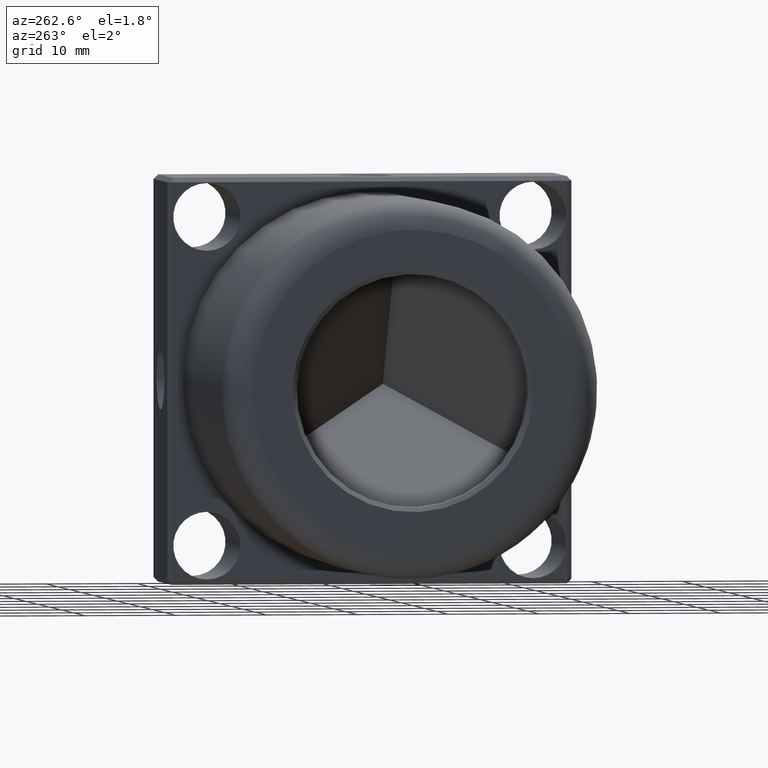
[diagram: clean part render]
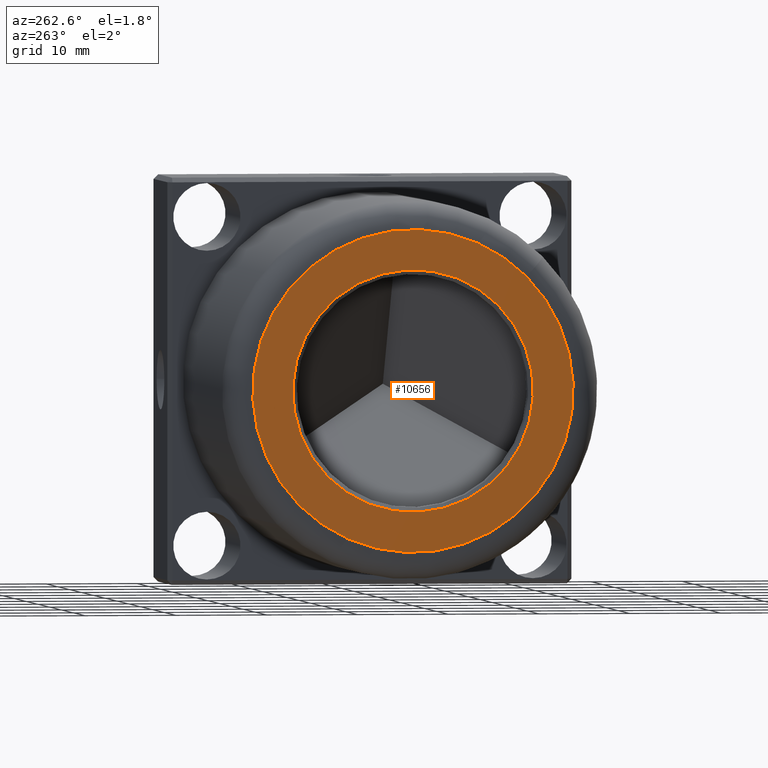
[diagram: same view with one face highlighted and labeled with its STEP entity id]
A machine part, auxiliary view. The second image highlights one B-rep face of the part: STEP entity #10656.
In plain terms, the highlighted planar face has unit normal (-1, 0, -0).
Its self-contained STEP definition (entity closure, byte-faithful):
#188 = EDGE_LOOP ( 'NONE', ( #10357, #11424 ) ) ;
#235 = DIRECTION ( 'NONE',  ( 1.000000000000000000, -6.489919646852779600E-017, 4.417091939023369800E-017 ) ) ;
#569 = EDGE_CURVE ( 'NONE', #2812, #10999, #9987, .T. ) ;
#1193 = CARTESIAN_POINT ( 'NONE',  ( -1.021895895768059300E-015, -9.369164850721841000, 9.369164850721666900 ) ) ;
#1259 = DIRECTION ( 'NONE',  ( -1.000000000000000000, 6.489919646852779600E-017, -4.417091939023369800E-017 ) ) ;
#1322 = EDGE_LOOP ( 'NONE', ( #4140, #1567 ) ) ;
#1468 = AXIS2_PLACEMENT_3D ( 'NONE', #5832, #235, #6802 ) ;
#1567 = ORIENTED_EDGE ( 'NONE', *, *, #3960, .T. ) ;
#2558 = CIRCLE ( 'NONE', #6806, 17.64999999999999900 ) ;
#2747 = CIRCLE ( 'NONE', #1468, 13.24999999999999800 ) ;
#2812 = VERTEX_POINT ( 'NONE', #1193 ) ;
#3012 = AXIS2_PLACEMENT_3D ( 'NONE', #6884, #1259, #7810 ) ;
#3636 = DIRECTION ( 'NONE',  ( -1.000000000000000000, 6.489919646852780900E-017, -4.417091939023371100E-017 ) ) ;
#3960 = EDGE_CURVE ( 'NONE', #8389, #8892, #8444, .T. ) ;
#3978 = DIRECTION ( 'NONE',  ( 1.000000000000000000, -6.489919646852779600E-017, 4.417091939023369800E-017 ) ) ;
#4000 = EDGE_CURVE ( 'NONE', #8892, #8389, #2558, .T. ) ;
#4140 = ORIENTED_EDGE ( 'NONE', *, *, #4000, .T. ) ;
#5046 = DIRECTION ( 'NONE',  ( -1.000000000000000000, 6.489919646852779600E-017, -4.417091939023369800E-017 ) ) ;
#5832 = CARTESIAN_POINT ( 'NONE',  ( 0.0000000000000000000, 0.0000000000000000000, 0.0000000000000000000 ) ) ;
#6695 = AXIS2_PLACEMENT_3D ( 'NONE', #9582, #3978, #10529 ) ;
#6802 = DIRECTION ( 'NONE',  ( -7.712421854853281400E-017, -0.7071067811865541200, 0.7071067811865410200 ) ) ;
#6806 = AXIS2_PLACEMENT_3D ( 'NONE', #10677, #5046, #11602 ) ;
#6884 = CARTESIAN_POINT ( 'NONE',  ( 0.0000000000000000000, 0.0000000000000000000, 0.0000000000000000000 ) ) ;
#6901 = CARTESIAN_POINT ( 'NONE',  ( 1.021895895768059300E-015, 9.369164850721841000, -9.369164850721665200 ) ) ;
#7265 = AXIS2_PLACEMENT_3D ( 'NONE', #9249, #3636, #10177 ) ;
#7627 = CARTESIAN_POINT ( 'NONE',  ( 1.331142532182104700E-015, 12.48043468794268000, -12.48043468794244700 ) ) ;
#7810 = DIRECTION ( 'NONE',  ( -7.712421854853281400E-017, -0.7071067811865540100, 0.7071067811865410200 ) ) ;
#8389 = VERTEX_POINT ( 'NONE', #7627 ) ;
#8444 = CIRCLE ( 'NONE', #3012, 17.64999999999999900 ) ;
#8892 = VERTEX_POINT ( 'NONE', #10458 ) ;
#8940 = EDGE_CURVE ( 'NONE', #10999, #2812, #2747, .T. ) ;
#9249 = CARTESIAN_POINT ( 'NONE',  ( -9.833337864937918000E-016, -9.015611460128500500, 9.015611460128459600 ) ) ;
#9582 = CARTESIAN_POINT ( 'NONE',  ( 0.0000000000000000000, 0.0000000000000000000, 0.0000000000000000000 ) ) ;
#9934 = FACE_OUTER_BOUND ( 'NONE', #1322, .T. ) ;
#9987 = CIRCLE ( 'NONE', #6695, 13.24999999999999800 ) ;
#10143 = PLANE ( 'NONE',  #7265 ) ;
#10177 = DIRECTION ( 'NONE',  ( -7.712421854853280200E-017, -0.7071067811865540100, 0.7071067811865410200 ) ) ;
#10357 = ORIENTED_EDGE ( 'NONE', *, *, #569, .T. ) ;
#10458 = CARTESIAN_POINT ( 'NONE',  ( -1.114302097685003900E-015, -12.48043468794267800, 12.48043468794244900 ) ) ;
#10529 = DIRECTION ( 'NONE',  ( -7.712421854853281400E-017, -0.7071067811865541200, 0.7071067811865410200 ) ) ;
#10656 = ADVANCED_FACE ( 'NONE', ( #12133, #9934 ), #10143, .T. ) ;
#10677 = CARTESIAN_POINT ( 'NONE',  ( 0.0000000000000000000, 0.0000000000000000000, 0.0000000000000000000 ) ) ;
#10999 = VERTEX_POINT ( 'NONE', #6901 ) ;
#11424 = ORIENTED_EDGE ( 'NONE', *, *, #8940, .T. ) ;
#11602 = DIRECTION ( 'NONE',  ( -7.712421854853281400E-017, -0.7071067811865540100, 0.7071067811865410200 ) ) ;
#12133 = FACE_BOUND ( 'NONE', #188, .T. ) ;